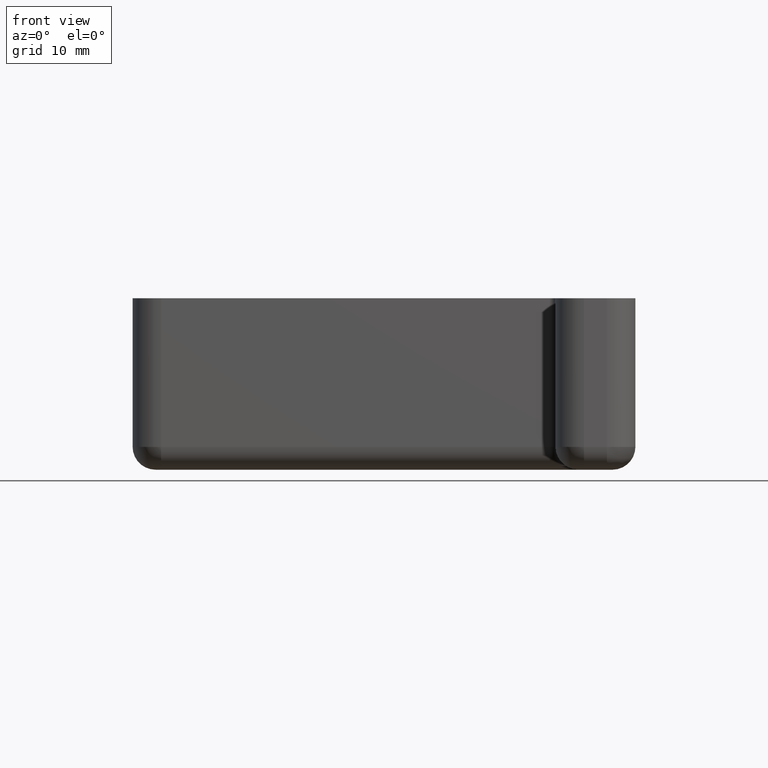
[diagram: clean part render]
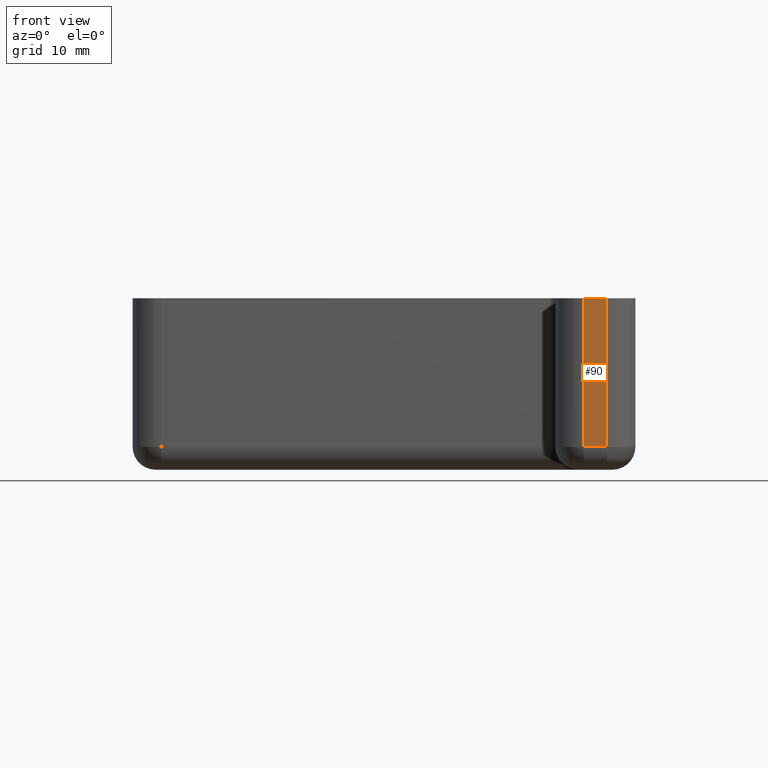
[diagram: same view with one face highlighted and labeled with its STEP entity id]
A machine part, front view. The second image highlights one B-rep face of the part: STEP entity #90.
In plain terms, the highlighted planar face has unit normal (-0, -1, 0).
Its self-contained STEP definition (entity closure, byte-faithful):
#90 = ADVANCED_FACE( '', ( #146 ), #147, .T. );
#146 = FACE_OUTER_BOUND( '', #225, .T. );
#147 = PLANE( '', #226 );
#225 = EDGE_LOOP( '', ( #494, #495, #496, #497 ) );
#226 = AXIS2_PLACEMENT_3D( '', #498, #499, #500 );
#494 = ORIENTED_EDGE( '', *, *, #719, .F. );
#495 = ORIENTED_EDGE( '', *, *, #720, .T. );
#496 = ORIENTED_EDGE( '', *, *, #682, .T. );
#497 = ORIENTED_EDGE( '', *, *, #669, .F. );
#498 = CARTESIAN_POINT( '', ( -2.50000000000001, -42.0000000000000, -15.0000000000000 ) );
#499 = DIRECTION( '', ( -1.22460635382238E-016, -1.00000000000000, 0.000000000000000 ) );
#500 = DIRECTION( '', ( -1.00000000000000, 1.22460635382238E-016, 0.000000000000000 ) );
#669 = EDGE_CURVE( '', #775, #754, #777, .T. );
#682 = EDGE_CURVE( '', #802, #754, #803, .T. );
#719 = EDGE_CURVE( '', #861, #775, #863, .T. );
#720 = EDGE_CURVE( '', #861, #802, #864, .T. );
#754 = VERTEX_POINT( '', #910 );
#775 = VERTEX_POINT( '', #936 );
#777 = LINE( '', #938, #939 );
#802 = VERTEX_POINT( '', #970 );
#803 = LINE( '', #971, #972 );
#861 = VERTEX_POINT( '', #1054 );
#863 = LINE( '', #1056, #1057 );
#864 = LINE( '', #1058, #1059 );
#910 = CARTESIAN_POINT( '', ( -0.500000000000032, -42.0000000000000, 0.000000000000000 ) );
#936 = CARTESIAN_POINT( '', ( -2.50000000000001, -42.0000000000000, 0.000000000000000 ) );
#938 = CARTESIAN_POINT( '', ( -2.50000000000001, -42.0000000000000, 0.000000000000000 ) );
#939 = VECTOR( '', #1143, 1000.00000000000 );
#970 = CARTESIAN_POINT( '', ( -0.500000000000032, -42.0000000000000, -13.0000000000000 ) );
#971 = CARTESIAN_POINT( '', ( -0.500000000000032, -42.0000000000000, -15.0000000000000 ) );
#972 = VECTOR( '', #1168, 1000.00000000000 );
#1054 = CARTESIAN_POINT( '', ( -2.50000000000001, -42.0000000000000, -13.0000000000000 ) );
#1056 = CARTESIAN_POINT( '', ( -2.50000000000001, -42.0000000000000, -15.0000000000000 ) );
#1057 = VECTOR( '', #1229, 1000.00000000000 );
#1058 = CARTESIAN_POINT( '', ( -0.500000000000032, -42.0000000000000, -13.0000000000000 ) );
#1059 = VECTOR( '', #1230, 1000.00000000000 );
#1143 = DIRECTION( '', ( 1.00000000000000, -1.22460635382238E-016, 0.000000000000000 ) );
#1168 = DIRECTION( '', ( 0.000000000000000, 0.000000000000000, 1.00000000000000 ) );
#1229 = DIRECTION( '', ( 0.000000000000000, 0.000000000000000, 1.00000000000000 ) );
#1230 = DIRECTION( '', ( 1.00000000000000, -1.22460635382238E-016, 0.000000000000000 ) );